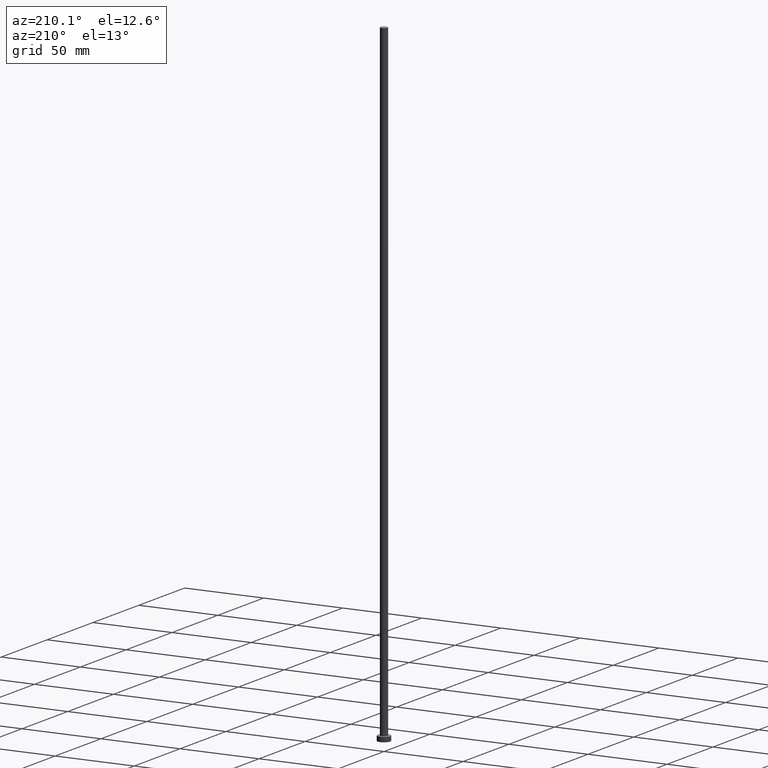
[diagram: clean part render]
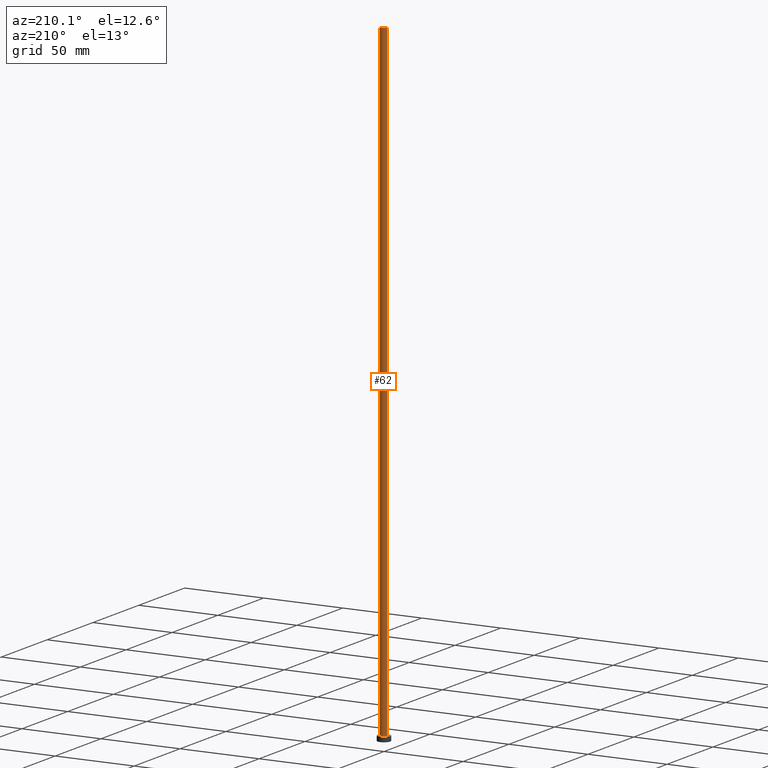
[diagram: same view with one face highlighted and labeled with its STEP entity id]
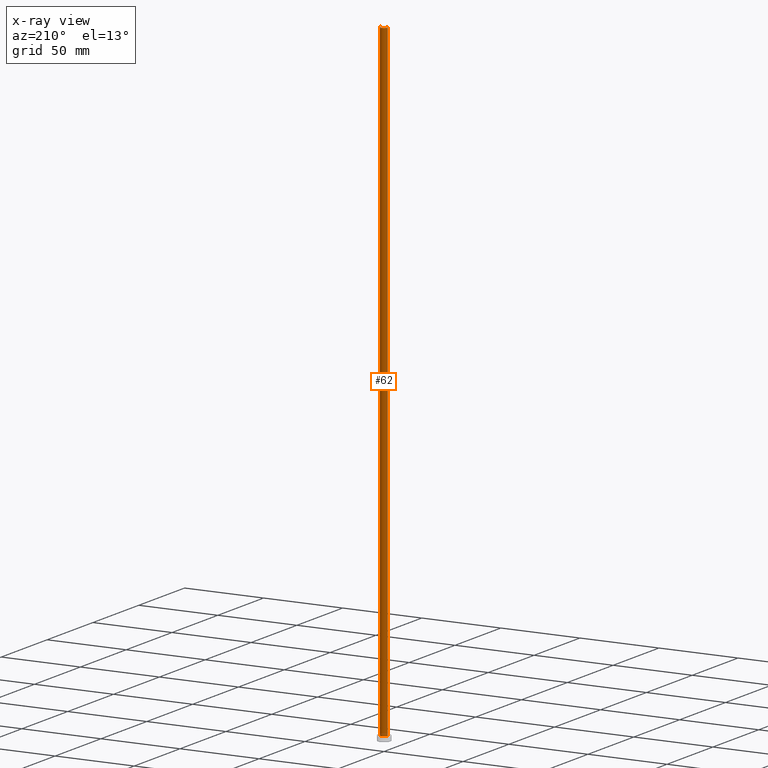
[diagram: x-ray of the same camera — body ghosted, the highlighted face saturated]
A machine part, auxiliary view. The second image highlights one B-rep face of the part: STEP entity #62.
The next image is the same camera in x-ray: the body ghosted, the highlighted face saturated — about 0% of this face is hidden behind the body in this view.
In plain terms, the highlighted cylindrical surface (edge-blend (fillet) strip) has radius 2.25 mm, axis along (-0, -0, -1).
Its self-contained STEP definition (entity closure, byte-faithful):
#13 = CARTESIAN_POINT ( 'NONE',  ( 0.000000000000000000, 0.000000000000000000, 3.000000000000000000 ) ) ;
#18 = EDGE_CURVE ( 'NONE', #42, #57, #49, .T. ) ;
#22 = VECTOR ( 'NONE', #251, 1000.000000000000000 ) ;
#23 = EDGE_LOOP ( 'NONE', ( #204, #117, #244, #185 ) ) ;
#24 = CARTESIAN_POINT ( 'NONE',  ( 0.000000000000000000, 0.000000000000000000, 400.0000000000000000 ) ) ;
#25 = DIRECTION ( 'NONE',  ( -1.000000000000000000, 0.000000000000000000, 0.000000000000000000 ) ) ;
#27 = CARTESIAN_POINT ( 'NONE',  ( -2.250000000000000000, 0.000000000000000000, 400.0000000000000000 ) ) ;
#29 = LINE ( 'NONE', #170, #22 ) ;
#33 = AXIS2_PLACEMENT_3D ( 'NONE', #13, #124, #210 ) ;
#39 = VERTEX_POINT ( 'NONE', #227 ) ;
#42 = VERTEX_POINT ( 'NONE', #252 ) ;
#47 = DIRECTION ( 'NONE',  ( -0.000000000000000000, -0.000000000000000000, -1.000000000000000000 ) ) ;
#49 = LINE ( 'NONE', #27, #255 ) ;
#57 = VERTEX_POINT ( 'NONE', #61 ) ;
#61 = CARTESIAN_POINT ( 'NONE',  ( -2.250000000000000000, 0.000000000000000000, 3.000000000000000000 ) ) ;
#62 = ADVANCED_FACE ( 'NONE', ( #78 ), #174, .T. ) ;
#72 = AXIS2_PLACEMENT_3D ( 'NONE', #249, #47, #25 ) ;
#74 = DIRECTION ( 'NONE',  ( -0.000000000000000000, -0.000000000000000000, -1.000000000000000000 ) ) ;
#78 = FACE_OUTER_BOUND ( 'NONE', #23, .T. ) ;
#92 = EDGE_CURVE ( 'NONE', #186, #42, #137, .T. ) ;
#99 = DIRECTION ( 'NONE',  ( 1.000000000000000000, 0.000000000000000000, 0.000000000000000000 ) ) ;
#106 = CARTESIAN_POINT ( 'NONE',  ( 2.250000000000000000, 2.755455298081544285E-16, 400.0000000000000000 ) ) ;
#117 = ORIENTED_EDGE ( 'NONE', *, *, #157, .T. ) ;
#124 = DIRECTION ( 'NONE',  ( 0.000000000000000000, 0.000000000000000000, 1.000000000000000000 ) ) ;
#137 = CIRCLE ( 'NONE', #229, 2.250000000000000000 ) ;
#146 = CIRCLE ( 'NONE', #33, 2.250000000000000000 ) ;
#151 = DIRECTION ( 'NONE',  ( 0.000000000000000000, 0.000000000000000000, 1.000000000000000000 ) ) ;
#154 = EDGE_CURVE ( 'NONE', #39, #57, #146, .T. ) ;
#157 = EDGE_CURVE ( 'NONE', #186, #39, #29, .T. ) ;
#170 = CARTESIAN_POINT ( 'NONE',  ( 2.250000000000000000, 2.755455298081544285E-16, 400.0000000000000000 ) ) ;
#174 = CYLINDRICAL_SURFACE ( 'NONE', #72, 2.250000000000000000 ) ;
#185 = ORIENTED_EDGE ( 'NONE', *, *, #18, .F. ) ;
#186 = VERTEX_POINT ( 'NONE', #106 ) ;
#204 = ORIENTED_EDGE ( 'NONE', *, *, #92, .F. ) ;
#210 = DIRECTION ( 'NONE',  ( 1.000000000000000000, 0.000000000000000000, 0.000000000000000000 ) ) ;
#227 = CARTESIAN_POINT ( 'NONE',  ( 2.250000000000000000, 2.755455298081544285E-16, 3.000000000000000000 ) ) ;
#229 = AXIS2_PLACEMENT_3D ( 'NONE', #24, #151, #99 ) ;
#244 = ORIENTED_EDGE ( 'NONE', *, *, #154, .T. ) ;
#249 = CARTESIAN_POINT ( 'NONE',  ( 0.000000000000000000, 0.000000000000000000, 400.0000000000000000 ) ) ;
#251 = DIRECTION ( 'NONE',  ( -0.000000000000000000, -0.000000000000000000, -1.000000000000000000 ) ) ;
#252 = CARTESIAN_POINT ( 'NONE',  ( -2.250000000000000000, 0.000000000000000000, 400.0000000000000000 ) ) ;
#255 = VECTOR ( 'NONE', #74, 1000.000000000000000 ) ;